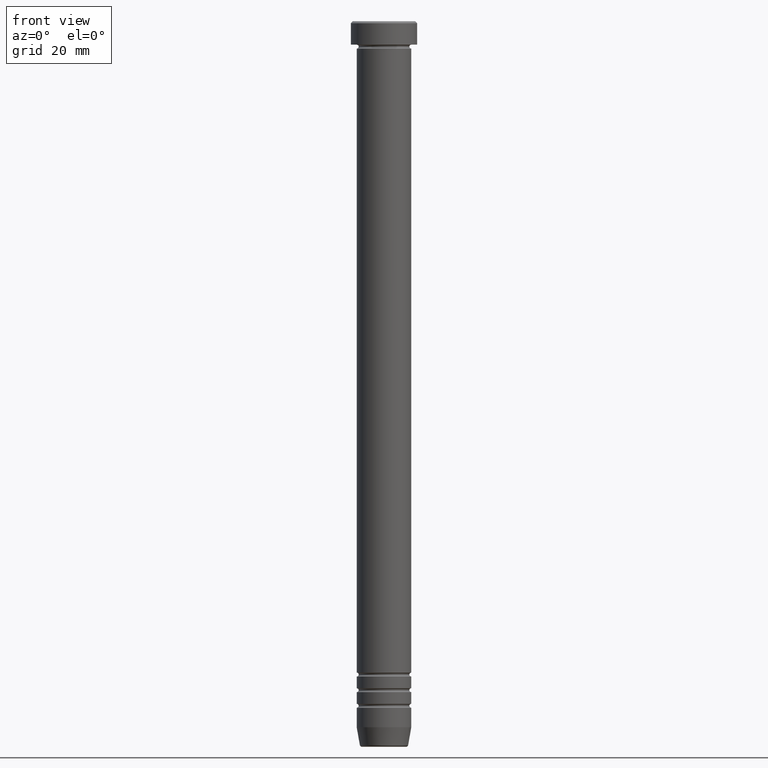
[diagram: clean part render]
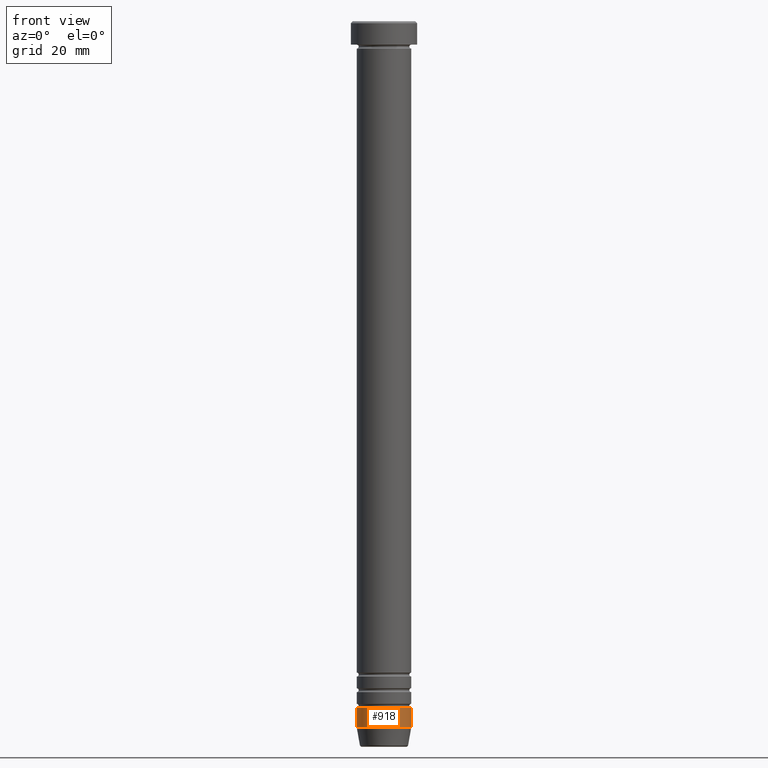
[diagram: same view with one face highlighted and labeled with its STEP entity id]
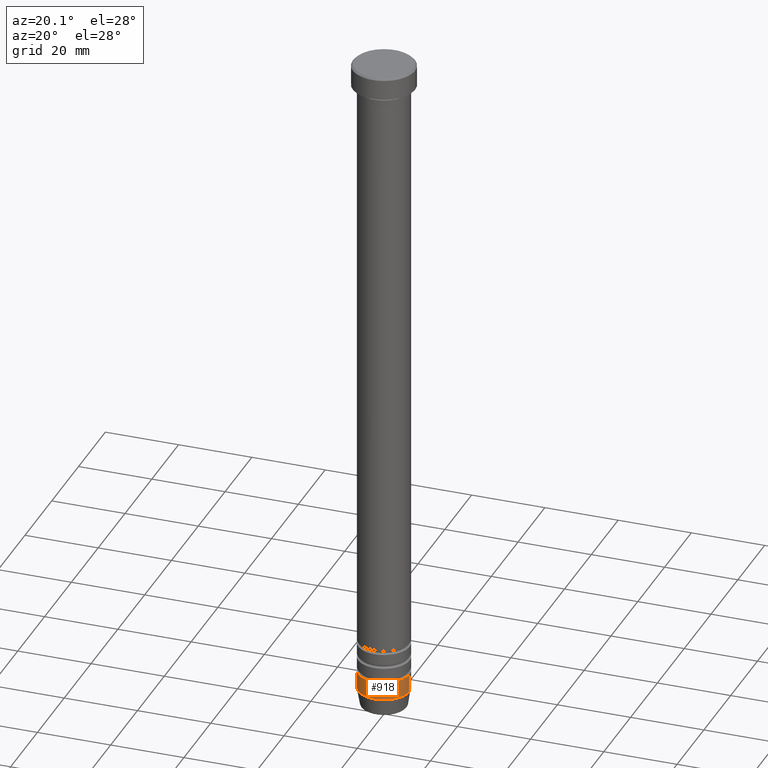
[diagram: same view with one face highlighted and labeled with its STEP entity id]
A machine part, front view. The second image highlights one B-rep face of the part: STEP entity #918.
A second angle (auxiliary view) of the same face is appended — the face is thin or edge-on in the first view.
In plain terms, the highlighted cylindrical surface (edge-blend (fillet) strip) has radius 7 mm, axis along (-0, -0, 1).
Its self-contained STEP definition (entity closure, byte-faithful):
#7 = CARTESIAN_POINT ( 'NONE',  ( -6.999999999999998224, 8.572527594031471218E-16, -176.0000000000000000 ) ) ;
#30 = CARTESIAN_POINT ( 'NONE',  ( 6.999999999999998224, 0.000000000000000000, 0.000000000000000000 ) ) ;
#91 = EDGE_CURVE ( 'NONE', #338, #174, #576, .T. ) ;
#100 = CARTESIAN_POINT ( 'NONE',  ( -6.999999999999998224, 8.572527594031471218E-16, -181.0000000000000000 ) ) ;
#174 = VERTEX_POINT ( 'NONE', #358 ) ;
#177 = ORIENTED_EDGE ( 'NONE', *, *, #91, .T. ) ;
#235 = DIRECTION ( 'NONE',  ( -0.000000000000000000, -0.000000000000000000, 1.000000000000000000 ) ) ;
#245 = VERTEX_POINT ( 'NONE', #100 ) ;
#248 = ORIENTED_EDGE ( 'NONE', *, *, #1023, .F. ) ;
#303 = EDGE_CURVE ( 'NONE', #245, #338, #640, .T. ) ;
#305 = ORIENTED_EDGE ( 'NONE', *, *, #944, .F. ) ;
#322 = CARTESIAN_POINT ( 'NONE',  ( 0.000000000000000000, 0.000000000000000000, 0.000000000000000000 ) ) ;
#327 = CARTESIAN_POINT ( 'NONE',  ( -6.999999999999998224, 8.572527594031471218E-16, 0.000000000000000000 ) ) ;
#338 = VERTEX_POINT ( 'NONE', #914 ) ;
#358 = CARTESIAN_POINT ( 'NONE',  ( 6.999999999999998224, 0.000000000000000000, -176.0000000000000000 ) ) ;
#391 = DIRECTION ( 'NONE',  ( -0.000000000000000000, -0.000000000000000000, 1.000000000000000000 ) ) ;
#399 = AXIS2_PLACEMENT_3D ( 'NONE', #816, #806, #565 ) ;
#411 = LINE ( 'NONE', #327, #441 ) ;
#441 = VECTOR ( 'NONE', #1026, 1000.000000000000000 ) ;
#478 = FACE_OUTER_BOUND ( 'NONE', #779, .T. ) ;
#547 = VECTOR ( 'NONE', #391, 1000.000000000000000 ) ;
#565 = DIRECTION ( 'NONE',  ( 1.000000000000000000, 0.000000000000000000, 0.000000000000000000 ) ) ;
#576 = LINE ( 'NONE', #30, #547 ) ;
#640 = CIRCLE ( 'NONE', #399, 6.999999999999998224 ) ;
#665 = CARTESIAN_POINT ( 'NONE',  ( 0.000000000000000000, 0.000000000000000000, -176.0000000000000000 ) ) ;
#676 = DIRECTION ( 'NONE',  ( 1.000000000000000000, 0.000000000000000000, 0.000000000000000000 ) ) ;
#745 = CYLINDRICAL_SURFACE ( 'NONE', #872, 6.999999999999998224 ) ;
#779 = EDGE_LOOP ( 'NONE', ( #248, #904, #177, #305 ) ) ;
#806 = DIRECTION ( 'NONE',  ( -0.000000000000000000, -0.000000000000000000, 1.000000000000000000 ) ) ;
#816 = CARTESIAN_POINT ( 'NONE',  ( 0.000000000000000000, 0.000000000000000000, -181.0000000000000000 ) ) ;
#851 = CIRCLE ( 'NONE', #894, 6.999999999999998224 ) ;
#872 = AXIS2_PLACEMENT_3D ( 'NONE', #322, #235, #1020 ) ;
#894 = AXIS2_PLACEMENT_3D ( 'NONE', #665, #922, #676 ) ;
#904 = ORIENTED_EDGE ( 'NONE', *, *, #303, .T. ) ;
#914 = CARTESIAN_POINT ( 'NONE',  ( 6.999999999999998224, 0.000000000000000000, -181.0000000000000000 ) ) ;
#918 = ADVANCED_FACE ( 'NONE', ( #478 ), #745, .T. ) ;
#922 = DIRECTION ( 'NONE',  ( -0.000000000000000000, -0.000000000000000000, 1.000000000000000000 ) ) ;
#944 = EDGE_CURVE ( 'NONE', #1063, #174, #851, .T. ) ;
#1020 = DIRECTION ( 'NONE',  ( 1.000000000000000000, 0.000000000000000000, 0.000000000000000000 ) ) ;
#1023 = EDGE_CURVE ( 'NONE', #245, #1063, #411, .T. ) ;
#1026 = DIRECTION ( 'NONE',  ( -0.000000000000000000, -0.000000000000000000, 1.000000000000000000 ) ) ;
#1063 = VERTEX_POINT ( 'NONE', #7 ) ;